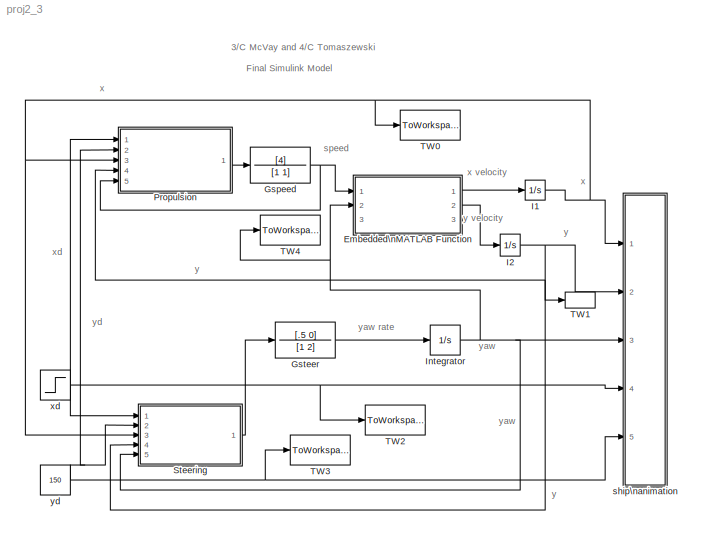
MODEL proj2_3
KIND model
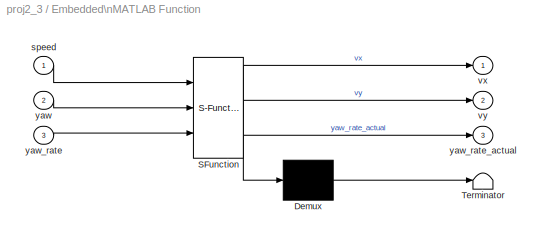
BLOCK [SubSystem] Embedded\nMATLAB Function
  FunctionWithSeparateData = off
  MaskDescription = Embedded MATLAB block
  MaskDisplay = disp('real_dynamics');
  MaskHideContents = off
  MaskIconFrame = on
  MaskIconOpaque = off
  MaskIconRotate = none
  MaskIconUnits = autoscale
  MaskPortRotate = default
  MaskSelfModifiable = on
  MaskType = Stateflow
  MinAlgLoopOccurrences = off
  Opaque = off
  PermitHierarchicalResolution = ExplicitOnly
  Ports = [3, 3]
  PropExecContextOutsideSubsystem = off
  RTWSystemCode = Auto
  RequestExecContextInheritance = off
  SID = 1
BLOCK [Demux] Embedded\nMATLAB Function/ Demux 
  Outputs = 1
  Ports = [1, 1]
  SID = 9
BLOCK [S-Function] Embedded\nMATLAB Function/ SFunction 
  EnableBusSupport = on
  FunctionName = sf_sfun
  PortCounts = [3 4]
  Ports = [3, 4]
  SID = 8
  Tag = Stateflow S-Function proj2_3 2
BLOCK [Terminator] Embedded\nMATLAB Function/ Terminator 
  SID = 11
BLOCK [Inport] Embedded\nMATLAB Function/speed
  IconDisplay = Port number
  OutDataType = sfix(16)
  OutScaling = 2^0
  SID = 1
BLOCK [Outport] Embedded\nMATLAB Function/vx
  IconDisplay = Port number
  OutDataType = sfix(16)
  OutScaling = 2^0
  SID = 6
BLOCK [Outport] Embedded\nMATLAB Function/vy
  IconDisplay = Port number
  Port = 2
  SID = 7
BLOCK [Inport] Embedded\nMATLAB Function/yaw
  IconDisplay = Port number
  Port = 2
  SID = 2
BLOCK [Inport] Embedded\nMATLAB Function/yaw_rate
  IconDisplay = Port number
  Port = 3
  SID = 12
BLOCK [Outport] Embedded\nMATLAB Function/yaw_rate_actual
  IconDisplay = Port number
  Port = 3
  SID = 13
BLOCK [TransferFcn] Gspeed
  Denominator = [1 1]
  Numerator = [4]
  SID = 2
BLOCK [TransferFcn] Gsteer
  Denominator = [1 2]
  Numerator = [.5 0]
  SID = 3
BLOCK [Integrator] I1
  Ports = [1, 1]
  SID = 4
BLOCK [Integrator] I2
  Ports = [1, 1]
  SID = 5
BLOCK [Integrator] Integrator
  InitialCondition = -pi/2
  Ports = [1, 1]
  SID = 6
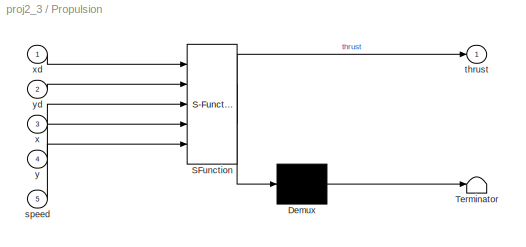
BLOCK [SubSystem] Propulsion
  FunctionWithSeparateData = off
  MaskDescription = Embedded MATLAB block
  MaskDisplay = disp('propulsion');
  MaskHideContents = off
  MaskIconFrame = on
  MaskIconOpaque = off
  MaskIconRotate = none
  MaskIconUnits = autoscale
  MaskPortRotate = default
  MaskSelfModifiable = on
  MaskType = Stateflow
  MinAlgLoopOccurrences = off
  Opaque = off
  PermitHierarchicalResolution = ExplicitOnly
  Ports = [5, 1]
  PropExecContextOutsideSubsystem = off
  RTWSystemCode = Auto
  RequestExecContextInheritance = off
  SID = 7
BLOCK [Demux] Propulsion/ Demux 
  Outputs = 1
  Ports = [1, 1]
  SID = 11
BLOCK [S-Function] Propulsion/ SFunction 
  EnableBusSupport = on
  FunctionName = sf_sfun
  PortCounts = [5 2]
  Ports = [5, 2]
  SID = 10
  Tag = Stateflow S-Function proj2_3 4
BLOCK [Terminator] Propulsion/ Terminator 
  SID = 13
BLOCK [Inport] Propulsion/speed
  IconDisplay = Port number
  Port = 5
  SID = 5
BLOCK [Outport] Propulsion/thrust
  IconDisplay = Port number
  SID = 9
BLOCK [Inport] Propulsion/x
  IconDisplay = Port number
  Port = 3
  SID = 3
BLOCK [Inport] Propulsion/xd
  IconDisplay = Port number
  OutDataType = sfix(16)
  OutScaling = 2^0
  SID = 1
BLOCK [Inport] Propulsion/y
  IconDisplay = Port number
  Port = 4
  SID = 4
BLOCK [Inport] Propulsion/yd
  IconDisplay = Port number
  Port = 2
  SID = 2
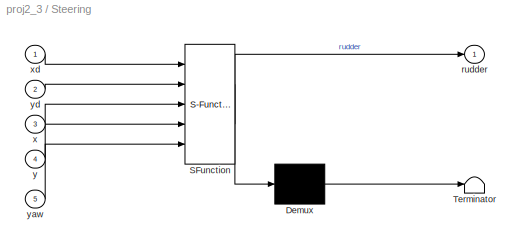
BLOCK [SubSystem] Steering
  FunctionWithSeparateData = off
  MaskDescription = Embedded MATLAB block
  MaskDisplay = disp('steering');
  MaskHideContents = off
  MaskIconFrame = on
  MaskIconOpaque = off
  MaskIconRotate = none
  MaskIconUnits = autoscale
  MaskPortRotate = default
  MaskSelfModifiable = on
  MaskType = Stateflow
  MinAlgLoopOccurrences = off
  Opaque = off
  PermitHierarchicalResolution = ExplicitOnly
  Ports = [5, 1]
  PropExecContextOutsideSubsystem = off
  RTWSystemCode = Auto
  RequestExecContextInheritance = off
  SID = 8
BLOCK [Demux] Steering/ Demux 
  Outputs = 1
  Ports = [1, 1]
  SID = 11
BLOCK [S-Function] Steering/ SFunction 
  EnableBusSupport = on
  FunctionName = sf_sfun
  PortCounts = [5 2]
  Ports = [5, 2]
  SID = 10
  Tag = Stateflow S-Function proj2_3 3
BLOCK [Terminator] Steering/ Terminator 
  SID = 13
BLOCK [Outport] Steering/rudder
  IconDisplay = Port number
  SID = 9
BLOCK [Inport] Steering/x
  IconDisplay = Port number
  Port = 3
  SID = 3
BLOCK [Inport] Steering/xd
  IconDisplay = Port number
  OutDataType = sfix(16)
  OutScaling = 2^0
  SID = 1
BLOCK [Inport] Steering/y
  IconDisplay = Port number
  Port = 4
  SID = 4
BLOCK [Inport] Steering/yaw
  IconDisplay = Port number
  Port = 5
  SID = 5
BLOCK [Inport] Steering/yd
  IconDisplay = Port number
  Port = 2
  SID = 2
BLOCK [ToWorkspace] TW0
  MaxDataPoints = inf
  Ports = [1]
  SID = 9
  SampleTime = -1
  SaveFormat = Array
  VariableName = x
BLOCK [ToWorkspace] TW1
  MaxDataPoints = inf
  Ports = [1]
  SID = 10
  SampleTime = -1
  SaveFormat = Array
  VariableName = y
BLOCK [ToWorkspace] TW2
  MaxDataPoints = inf
  Ports = [1]
  SID = 11
  SampleTime = -1
  SaveFormat = Array
  VariableName = xd
BLOCK [ToWorkspace] TW3
  MaxDataPoints = inf
  Ports = [1]
  SID = 12
  SampleTime = -1
  SaveFormat = Array
  VariableName = yd
BLOCK [ToWorkspace] TW4
  MaxDataPoints = inf
  Ports = [1]
  SID = 13
  SampleTime = -1
  SaveFormat = Array
  VariableName = yaw
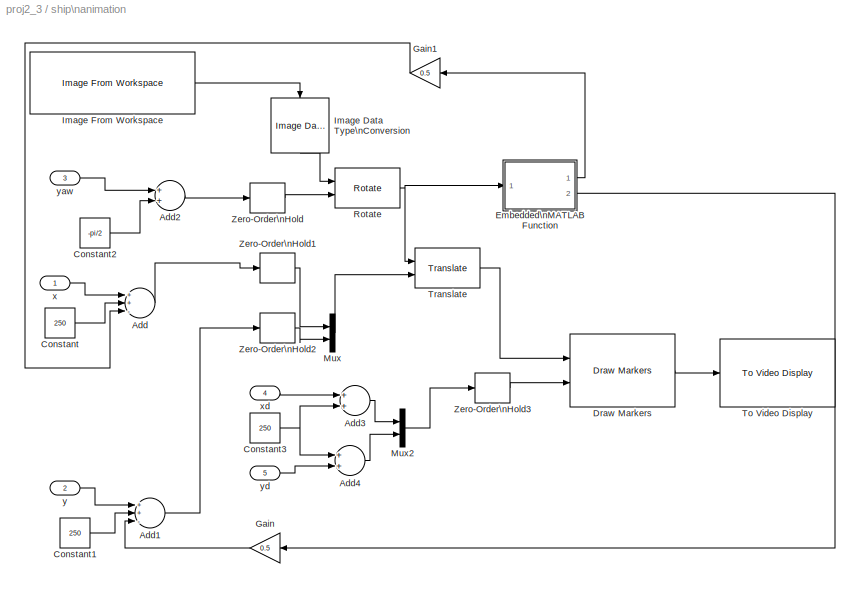
BLOCK [SubSystem] ship\nanimation
  FunctionWithSeparateData = off
  MaskHideContents = off
  MinAlgLoopOccurrences = off
  Opaque = off
  Ports = [5]
  PropExecContextOutsideSubsystem = off
  RTWSystemCode = Auto
  RequestExecContextInheritance = off
  SID = 14
BLOCK [Sum] ship\nanimation/Add
  InputSameDT = off
  Inputs = ++-
  OutDataType = sfix(16)
  OutDataTypeMode = Inherit via internal rule
  OutDataTypeStr = Inherit: Inherit via internal rule
  OutScaling = 2^-10
  Ports = [3, 1]
  SID = 20
  SaturateOnIntegerOverflow = off
BLOCK [Sum] ship\nanimation/Add1
  InputSameDT = off
  Inputs = ++-
  OutDataType = sfix(16)
  OutDataTypeMode = Inherit via internal rule
  OutDataTypeStr = Inherit: Inherit via internal rule
  OutScaling = 2^-10
  Ports = [3, 1]
  SID = 21
  SaturateOnIntegerOverflow = off
BLOCK [Sum] ship\nanimation/Add2
  InputSameDT = off
  OutDataType = sfix(16)
  OutDataTypeMode = Inherit via internal rule
  OutDataTypeStr = Inherit: Inherit via internal rule
  OutScaling = 2^-10
  Ports = [2, 1]
  SID = 22
  SaturateOnIntegerOverflow = off
BLOCK [Sum] ship\nanimation/Add3
  InputSameDT = off
  OutDataType = sfix(16)
  OutDataTypeMode = Inherit via internal rule
  OutDataTypeStr = Inherit: Inherit via internal rule
  OutScaling = 2^-10
  Ports = [2, 1]
  SID = 23
  SaturateOnIntegerOverflow = off
BLOCK [Sum] ship\nanimation/Add4
  InputSameDT = off
  OutDataType = sfix(16)
  OutDataTypeMode = Inherit via internal rule
  OutDataTypeStr = Inherit: Inherit via internal rule
  OutScaling = 2^-10
  Ports = [2, 1]
  SID = 24
  SaturateOnIntegerOverflow = off
BLOCK [Constant] ship\nanimation/Constant
  OutDataType = sfix(16)
  OutScaling = 2^0
  SID = 25
  Value = 250
BLOCK [Constant] ship\nanimation/Constant1
  OutDataType = sfix(16)
  OutScaling = 2^0
  SID = 26
  Value = 250
BLOCK [Constant] ship\nanimation/Constant2
  OutDataType = sfix(16)
  OutScaling = 2^0
  SID = 27
  Value = -pi/2
BLOCK [Constant] ship\nanimation/Constant3
  OutDataType = sfix(16)
  OutScaling = 2^0
  SID = 28
  Value = 250
BLOCK [Reference] ship\nanimation/Draw Markers  REF=viptextngfix/Draw Markers
  DialogController = vipDDGCreate
  DialogControllerArgs = DataTag0
  LockScale = off
  Ports = [2, 1]
  SID = 29
  SourceBlock = viptextngfix/Draw Markers
  SourceType = Draw Markers
  accumFracLength = 14
  accumMode = Same as product output
  accumWordLength = 32
  antialiasing = off
  color = [200 120 50]
  display = White
  fill = off
  fillClrSource = Specify via dialog
  imagePorts = One multidimensional signal
  inType = Obsolete
  intensity = 155
  memoryFracLength = 15
  memoryMode = Specify word length
  memoryWordLength = 16
  opacity = 1
  overflowMode = off
  prodOutputFracLength = 14
  prodOutputMode = Binary point scaling
  prodOutputWordLength = 32
  roundingMode = Floor
  shape = X-mark
  size = 6
  viewport = Entire image
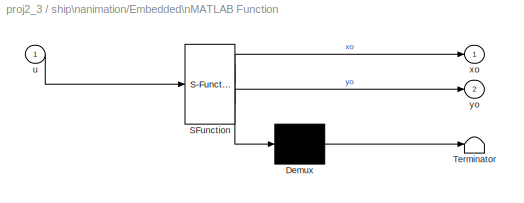
BLOCK [SubSystem] ship\nanimation/Embedded\nMATLAB Function
  FunctionWithSeparateData = off
  MaskDescription = Embedded MATLAB block
  MaskDisplay = disp('fcn');
  MaskHideContents = off
  MaskIconFrame = on
  MaskIconOpaque = off
  MaskIconRotate = none
  MaskIconUnits = autoscale
  MaskPortRotate = default
  MaskSelfModifiable = on
  MaskType = Stateflow
  MinAlgLoopOccurrences = off
  Opaque = off
  PermitHierarchicalResolution = ExplicitOnly
  Ports = [1, 2]
  PropExecContextOutsideSubsystem = off
  RTWSystemCode = Auto
  RequestExecContextInheritance = off
  SID = 30
  TreatAsAtomicUnit = on
BLOCK [Demux] ship\nanimation/Embedded\nMATLAB Function/ Demux 
  Outputs = 1
  Ports = [1, 1]
  SID = 8
BLOCK [S-Function] ship\nanimation/Embedded\nMATLAB Function/ SFunction 
  EnableBusSupport = on
  FunctionName = sf_sfun
  PortCounts = [1 3]
  Ports = [1, 3]
  SID = 7
  Tag = Stateflow S-Function proj2_3 1
BLOCK [Terminator] ship\nanimation/Embedded\nMATLAB Function/ Terminator 
  SID = 10
BLOCK [Inport] ship\nanimation/Embedded\nMATLAB Function/u
  IconDisplay = Port number
  OutDataType = sfix(16)
  OutScaling = 2^0
  SID = 1
BLOCK [Outport] ship\nanimation/Embedded\nMATLAB Function/xo
  IconDisplay = Port number
  OutDataType = sfix(16)
  OutScaling = 2^0
  SID = 5
BLOCK [Outport] ship\nanimation/Embedded\nMATLAB Function/yo
  IconDisplay = Port number
  Port = 2
  SID = 6
BLOCK [Gain] ship\nanimation/Gain
  Gain = 0.5
  OutDataType = sfix(16)
  OutDataTypeMode = Inherit via internal rule
  OutDataTypeStr = Inherit: Inherit via internal rule
  OutScaling = 2^0
  ParamDataTypeStr = Inherit: Inherit via internal rule
  ParameterDataType = sfix(16)
  ParameterDataTypeMode = Inherit via internal rule
  ParameterScaling = 2^0
  SID = 31
  SaturateOnIntegerOverflow = off
BLOCK [Gain] ship\nanimation/Gain1
  Gain = 0.5
  OutDataType = sfix(16)
  OutDataTypeMode = Inherit via internal rule
  OutDataTypeStr = Inherit: Inherit via internal rule
  OutScaling = 2^0
  ParamDataTypeStr = Inherit: Inherit via internal rule
  ParameterDataType = sfix(16)
  ParameterDataTypeMode = Inherit via internal rule
  ParameterScaling = 2^0
  SID = 32
  SaturateOnIntegerOverflow = off
BLOCK [Reference] ship\nanimation/Image Data Type\nConversion  REF=vipconversions/Image Data Type\nConversion
  Ports = [1, 1]
  SID = 33
  SourceBlock = vipconversions/Image Data Type\nConversion
  SourceType = Image Data Type Conversion
  isSigned = on
  numFracBits = 0
  outDT = double
  wordLen = 16
BLOCK [Reference] ship\nanimation/Image From Workspace  REF=vipsrcs/Image From Workspace
  FractionLength = 15
  FractionLengthMode = User-defined
  FunctionWithSeparateData = off
  ImageDataType = Inherit from 'Value'
  ImageValue = ship
  OutPortLabels = R|G|B
  Ports = [0, 1]
  RTWMemSecDataConstants = Inherit from model
  RTWMemSecDataInternal = Inherit from model
  RTWMemSecDataParameters = Inherit from model
  RTWMemSecFuncExecute = Inherit from model
  RTWMemSecFuncInitTerm = Inherit from model
  SID = 34
  ShowPortLabels = FromPortIcon
  Signed = on
  SourceBlock = vipsrcs/Image From Workspace
  SourceType = Image From Workspace
  SystemSampleTime = -1
  Tag = vipblks_nd
  Ts = inf
  WordLength = 16
  imagePorts = One multidimensional signal
  sdImageDataType = sfix(16)
BLOCK [Mux] ship\nanimation/Mux
  DisplayOption = bar
  Inputs = 2
  Ports = [2, 1]
  SID = 35
BLOCK [Mux] ship\nanimation/Mux2
  DisplayOption = bar
  Inputs = 2
  Ports = [2, 1]
  SID = 36
BLOCK [Reference] ship\nanimation/Rotate  REF=vipgeotforms/Rotate
  DialogController = vipDDGCreate
  DialogControllerArgs = DataTag1
  LockScale = off
  Ports = [2, 1]
  SID = 37
  SourceBlock = vipgeotforms/Rotate
  SourceType = Rotate
  accumFracLength = 10
  accumMode = Same as product output
  accumWordLength = 32
  angle = pi/6
  dispImage = Center
  fillVal = 0
  firstCoeffFracLength = 10
  firstCoeffMode = Same word length as input
  firstCoeffWordLength = 32
  interpMethod = Bilinear
  maxAngle = pi
  method = Table lookup
  outSizeR = Expanded to fit rotated input image
  outputFracLength = 10
  outputMode = Same as first input
  outputWordLength = 32
  overflowMode = on
  prodOutputFracLength = 10
  prodOutputMode = Binary point scaling
  prodOutputWordLength = 32
  roundingMode = Nearest
  src_angle = Input port
  unit_angle = Degrees
BLOCK [Reference] ship\nanimation/To Video Display  REF=vipsnks/To Video Display
  DialogControllerArgs = DataTag2
  OutputDevice = On-screen video monitor
  Ports = [1]
  SID = 38
  SourceBlock = vipsnks/To Video Display
  SourceType = To Video Display
  dataOrg = Column-major
  fullScreen = off
  imagePorts = One multidimensional signal
  inputType = Obsolete
  isWindowOpen = off
  openAtMdlStart = on
  saveWindowSize = off
  videoWindowHeight = 595
  videoWindowWidth = 594
  videoWindowX = 1008
  videoWindowY = 21
BLOCK [Reference] ship\nanimation/Translate  REF=vipgeotforms/Translate
  DialogController = vipDDGCreate
  DialogControllerArgs = DataTag3
  LockScale = off
  Ports = [2, 1]
  SID = 39
  SourceBlock = vipgeotforms/Translate
  SourceType = Translate
  accumFracLength = 10
  accumMode = Same as product output
  accumWordLength = 32
  fillVal = 0
  firstCoeffFracLength = 6
  firstCoeffMode = Same word length as input
  firstCoeffWordLength = 16
  interpMethod = Bilinear
  maxOffset = [500 500]
  outSizeT = Full
  outputFracLength = 10
  outputMode = Same as first input
  outputWordLength = 32
  overflowMode = on
  prodOutputFracLength = 10
  prodOutputMode = Binary point scaling
  prodOutputWordLength = 32
  roundingMode = Nearest
  src_trans = Input port
  translation = [1.5  2.3]
BLOCK [ZeroOrderHold] ship\nanimation/Zero-Order\nHold
  SID = 40
  SampleTime = 1/30
BLOCK [ZeroOrderHold] ship\nanimation/Zero-Order\nHold1
  SID = 41
  SampleTime = 1/30
BLOCK [ZeroOrderHold] ship\nanimation/Zero-Order\nHold2
  SID = 42
  SampleTime = 1/30
BLOCK [ZeroOrderHold] ship\nanimation/Zero-Order\nHold3
  SID = 43
  SampleTime = 1/30
BLOCK [Inport] ship\nanimation/x
  IconDisplay = Port number
  OutDataType = sfix(16)
  OutScaling = 2^0
  SID = 15
BLOCK [Inport] ship\nanimation/xd
  IconDisplay = Port number
  OutDataType = sfix(16)
  OutScaling = 2^0
  Port = 4
  SID = 18
BLOCK [Inport] ship\nanimation/y
  IconDisplay = Port number
  OutDataType = sfix(16)
  OutScaling = 2^0
  Port = 2
  SID = 16
BLOCK [Inport] ship\nanimation/yaw
  IconDisplay = Port number
  OutDataType = sfix(16)
  OutScaling = 2^0
  Port = 3
  SID = 17
BLOCK [Inport] ship\nanimation/yd
  IconDisplay = Port number
  OutDataType = sfix(16)
  OutScaling = 2^0
  Port = 5
  SID = 19
BLOCK [Step] xd
  After = -100
  SID = 44
  SampleTime = 0
  Time = 13
BLOCK [Constant] yd
  OutDataType = fixdt(1, 16)
  OutScaling = 2^0
  SID = 45
  Value = 150
ANNOTATION (root): 3/C McVay and 4/C Tomaszewski
ANNOTATION (root): Final Simulink Model
ANNOTATION (root): speed
ANNOTATION (root): x
ANNOTATION (root): x velocity
ANNOTATION (root): xd
ANNOTATION (root): y
ANNOTATION (root): y velocity
ANNOTATION (root): yaw
ANNOTATION (root): yaw rate
ANNOTATION (root): yd
LINE Embedded\nMATLAB Function/ Demux :1 -> Embedded\nMATLAB Function/ Terminator :1
LINE Embedded\nMATLAB Function/ SFunction :1 -> Embedded\nMATLAB Function/ Demux :1
LINE Embedded\nMATLAB Function/ SFunction :2 -> Embedded\nMATLAB Function/vx:1
LINE Embedded\nMATLAB Function/ SFunction :3 -> Embedded\nMATLAB Function/vy:1
LINE Embedded\nMATLAB Function/ SFunction :4 -> Embedded\nMATLAB Function/yaw_rate_actual:1
LINE Embedded\nMATLAB Function/speed:1 -> Embedded\nMATLAB Function/ SFunction :1
LINE Embedded\nMATLAB Function/yaw:1 -> Embedded\nMATLAB Function/ SFunction :2
LINE Embedded\nMATLAB Function/yaw_rate:1 -> Embedded\nMATLAB Function/ SFunction :3
LINE Embedded\nMATLAB Function:1 -> I1:1
LINE Embedded\nMATLAB Function:2 -> I2:1
NET Gspeed:1 -> Embedded\nMATLAB Function:1, Propulsion:5
LINE Gsteer:1 -> Integrator:1
NET I1:1 -> Propulsion:3, Steering:3, TW0:1, ship\nanimation:1
NET I2:1 -> Propulsion:4, Steering:4, TW1:1, ship\nanimation:2
NET Integrator:1 -> Embedded\nMATLAB Function:2, Steering:5, TW4:1, ship\nanimation:3
LINE Propulsion/ Demux :1 -> Propulsion/ Terminator :1
LINE Propulsion/ SFunction :1 -> Propulsion/ Demux :1
LINE Propulsion/ SFunction :2 -> Propulsion/thrust:1
LINE Propulsion/speed:1 -> Propulsion/ SFunction :5
LINE Propulsion/x:1 -> Propulsion/ SFunction :3
LINE Propulsion/xd:1 -> Propulsion/ SFunction :1
LINE Propulsion/y:1 -> Propulsion/ SFunction :4
LINE Propulsion/yd:1 -> Propulsion/ SFunction :2
LINE Propulsion:1 -> Gspeed:1
LINE Steering/ Demux :1 -> Steering/ Terminator :1
LINE Steering/ SFunction :1 -> Steering/ Demux :1
LINE Steering/ SFunction :2 -> Steering/rudder:1
LINE Steering/x:1 -> Steering/ SFunction :3
LINE Steering/xd:1 -> Steering/ SFunction :1
LINE Steering/y:1 -> Steering/ SFunction :4
LINE Steering/yaw:1 -> Steering/ SFunction :5
LINE Steering/yd:1 -> Steering/ SFunction :2
LINE Steering:1 -> Gsteer:1
LINE ship\nanimation/Add1:1 -> ship\nanimation/Zero-Order\nHold2:1
LINE ship\nanimation/Add2:1 -> ship\nanimation/Zero-Order\nHold:1
LINE ship\nanimation/Add3:1 -> ship\nanimation/Mux2:1
LINE ship\nanimation/Add4:1 -> ship\nanimation/Mux2:2
LINE ship\nanimation/Add:1 -> ship\nanimation/Zero-Order\nHold1:1
LINE ship\nanimation/Constant1:1 -> ship\nanimation/Add1:2
LINE ship\nanimation/Constant2:1 -> ship\nanimation/Add2:2
NET ship\nanimation/Constant3:1 -> ship\nanimation/Add3:2, ship\nanimation/Add4:1
LINE ship\nanimation/Constant:1 -> ship\nanimation/Add:2
LINE ship\nanimation/Draw Markers:1 -> ship\nanimation/To Video Display:1
LINE ship\nanimation/Embedded\nMATLAB Function/ Demux :1 -> ship\nanimation/Embedded\nMATLAB Function/ Terminator :1
LINE ship\nanimation/Embedded\nMATLAB Function/ SFunction :1 -> ship\nanimation/Embedded\nMATLAB Function/ Demux :1
LINE ship\nanimation/Embedded\nMATLAB Function/ SFunction :2 -> ship\nanimation/Embedded\nMATLAB Function/xo:1
LINE ship\nanimation/Embedded\nMATLAB Function/ SFunction :3 -> ship\nanimation/Embedded\nMATLAB Function/yo:1
LINE ship\nanimation/Embedded\nMATLAB Function/u:1 -> ship\nanimation/Embedded\nMATLAB Function/ SFunction :1
LINE ship\nanimation/Embedded\nMATLAB Function:1 -> ship\nanimation/Gain1:1
LINE ship\nanimation/Embedded\nMATLAB Function:2 -> ship\nanimation/Gain:1
LINE ship\nanimation/Gain1:1 -> ship\nanimation/Add:3
LINE ship\nanimation/Gain:1 -> ship\nanimation/Add1:3
LINE ship\nanimation/Image Data Type\nConversion:1 -> ship\nanimation/Rotate:1
LINE ship\nanimation/Image From Workspace:1 -> ship\nanimation/Image Data Type\nConversion:1
LINE ship\nanimation/Mux2:1 -> ship\nanimation/Zero-Order\nHold3:1
LINE ship\nanimation/Mux:1 -> ship\nanimation/Translate:2
NET ship\nanimation/Rotate:1 -> ship\nanimation/Embedded\nMATLAB Function:1, ship\nanimation/Translate:1
LINE ship\nanimation/Translate:1 -> ship\nanimation/Draw Markers:1
LINE ship\nanimation/Zero-Order\nHold1:1 -> ship\nanimation/Mux:1
LINE ship\nanimation/Zero-Order\nHold2:1 -> ship\nanimation/Mux:2
LINE ship\nanimation/Zero-Order\nHold3:1 -> ship\nanimation/Draw Markers:2
LINE ship\nanimation/Zero-Order\nHold:1 -> ship\nanimation/Rotate:2
LINE ship\nanimation/x:1 -> ship\nanimation/Add:1
LINE ship\nanimation/xd:1 -> ship\nanimation/Add3:1
LINE ship\nanimation/y:1 -> ship\nanimation/Add1:1
LINE ship\nanimation/yaw:1 -> ship\nanimation/Add2:1
LINE ship\nanimation/yd:1 -> ship\nanimation/Add4:2
NET xd:1 -> Propulsion:1, Steering:1, TW2:1, ship\nanimation:4
NET yd:1 -> Propulsion:2, Steering:2, TW3:1, ship\nanimation:5
note: NET lines group one-source signal fan-out (src -> all destinations, sorted); 1:1 wires keep LINE
CHART ship\nanimation/Embedded\nMATLAB Function states=1 transitions=1
  STATE_LABEL 'eML_blk_kernel()'
CHART Embedded\nMATLAB Function states=1 transitions=1
  STATE_LABEL 'eML_blk_kernel()'
CHART Steering states=1 transitions=1
  STATE_LABEL 'eML_blk_kernel()'
CHART Propulsion states=1 transitions=1
  STATE_LABEL 'eML_blk_kernel()'
